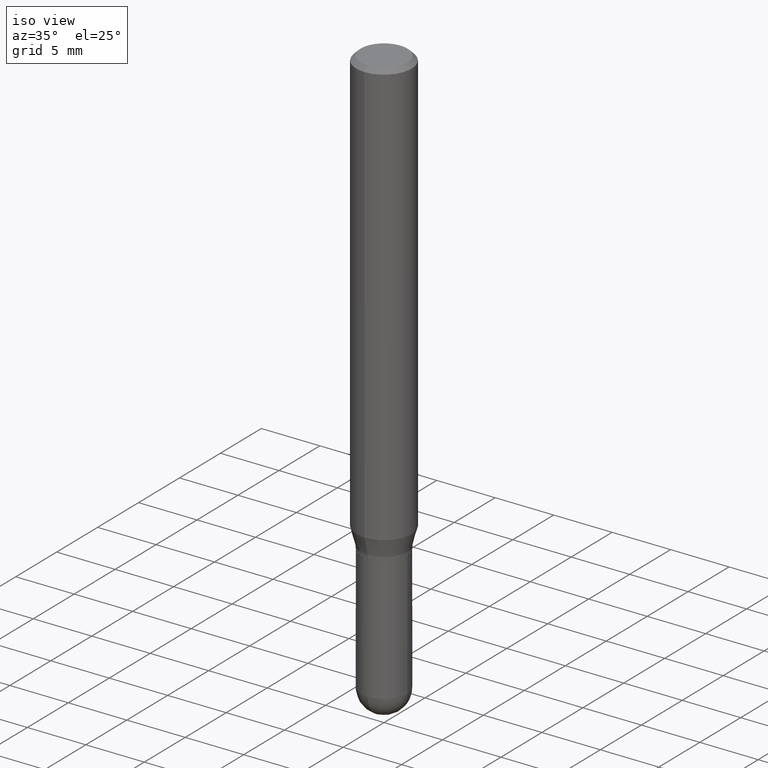
[diagram: clean part render]
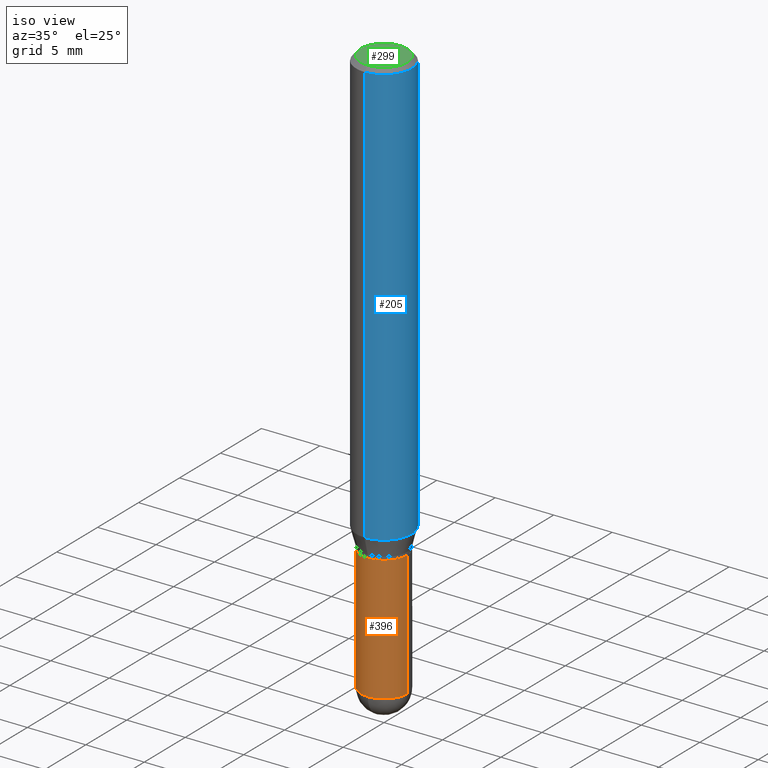
[diagram: same view with three faces highlighted in distinct colors, each labeled with its STEP entity id]
A machine part, iso view with three faces highlighted in distinct colors.
Their STEP definitions:

[orange] entity #396 — the highlighted cylindrical surface (edge-blend (fillet) strip) has radius 1.9837 mm, axis along (-0, 0, 1).
#2 = CIRCLE ( 'NONE', #281, 0.07810000000000000275 ) ;
#6 = DIRECTION ( 'NONE',  ( -2.445468806185136597E-29, 3.491481338843145583E-15, 1.000000000000000000 ) ) ;
#19 = CARTESIAN_POINT ( 'NONE',  ( 0.07810000000000000275, -5.453693851272974364E-16, 3.808294061896625703E-30 ) ) ;
#42 = DIRECTION ( 'NONE',  ( 1.000000000000000000, -6.982962677686266711E-15, 0.000000000000000000 ) ) ;
#47 = CARTESIAN_POINT ( 'NONE',  ( 4.699946498607214373E-29, -6.710277985122641264E-15, -1.921900000000000164 ) ) ;
#54 = AXIS2_PLACEMENT_3D ( 'NONE', #47, #482, #153 ) ;
#67 = DIRECTION ( 'NONE',  ( 1.000000000000000000, -6.982962677686266711E-15, 4.876176775795935232E-29 ) ) ;
#68 = VERTEX_POINT ( 'NONE', #305 ) ;
#100 = VERTEX_POINT ( 'NONE', #353 ) ;
#113 = EDGE_CURVE ( 'NONE', #68, #472, #184, .T. ) ;
#116 = AXIS2_PLACEMENT_3D ( 'NONE', #304, #371, #67 ) ;
#118 = EDGE_LOOP ( 'NONE', ( #216, #228, #269, #381, #448 ) ) ;
#135 = FACE_OUTER_BOUND ( 'NONE', #118, .T. ) ;
#151 = EDGE_CURVE ( 'NONE', #100, #348, #2, .T. ) ;
#153 = DIRECTION ( 'NONE',  ( 1.000000000000000000, -6.982962677686266711E-15, 0.000000000000000000 ) ) ;
#165 = EDGE_CURVE ( 'NONE', #379, #68, #333, .T. ) ;
#171 = DIRECTION ( 'NONE',  ( -2.445468806185136877E-29, 3.491481338843145188E-15, 1.000000000000000000 ) ) ;
#184 = CIRCLE ( 'NONE', #501, 0.07810000000000000275 ) ;
#195 = CARTESIAN_POINT ( 'NONE',  ( 4.699946498607214373E-29, -6.710277985122641264E-15, -1.921900000000000164 ) ) ;
#208 = CARTESIAN_POINT ( 'NONE',  ( -0.07810000000000000275, 5.549338766286382647E-16, -3.841688305489081275E-30 ) ) ;
#216 = ORIENTED_EDGE ( 'NONE', *, *, #260, .F. ) ;
#228 = ORIENTED_EDGE ( 'NONE', *, *, #165, .T. ) ;
#236 = DIRECTION ( 'NONE',  ( -2.445468806185136597E-29, 3.491481338843145583E-15, 1.000000000000000000 ) ) ;
#260 = EDGE_CURVE ( 'NONE', #379, #100, #454, .T. ) ;
#262 = DIRECTION ( 'NONE',  ( -2.445468806185136877E-29, 3.491481338843145188E-15, 1.000000000000000000 ) ) ;
#269 = ORIENTED_EDGE ( 'NONE', *, *, #113, .T. ) ;
#277 = CARTESIAN_POINT ( 'NONE',  ( 0.07810000000000000275, -6.519119381820976762E-15, -1.921900000000000164 ) ) ;
#281 = AXIS2_PLACEMENT_3D ( 'NONE', #479, #6, #42 ) ;
#304 = CARTESIAN_POINT ( 'NONE',  ( 0.000000000000000000, 0.000000000000000000, 0.000000000000000000 ) ) ;
#305 = CARTESIAN_POINT ( 'NONE',  ( -5.549338766285910317E-16, -0.07810000000000670572, -1.921899999999999720 ) ) ;
#313 = EDGE_CURVE ( 'NONE', #472, #348, #372, .T. ) ;
#333 = CIRCLE ( 'NONE', #54, 0.07810000000000000275 ) ;
#342 = CYLINDRICAL_SURFACE ( 'NONE', #116, 0.07810000000000000275 ) ;
#348 = VERTEX_POINT ( 'NONE', #401 ) ;
#353 = CARTESIAN_POINT ( 'NONE',  ( -0.07810000000000000275, -5.418816120065042244E-15, -1.500000000000000222 ) ) ;
#371 = DIRECTION ( 'NONE',  ( -2.445468806185136597E-29, 3.491481338843145583E-15, 1.000000000000000000 ) ) ;
#372 = LINE ( 'NONE', #19, #416 ) ;
#379 = VERTEX_POINT ( 'NONE', #488 ) ;
#381 = ORIENTED_EDGE ( 'NONE', *, *, #313, .T. ) ;
#384 = VECTOR ( 'NONE', #262, 39.37007874015748143 ) ;
#396 = ADVANCED_FACE ( 'NONE', ( #135 ), #342, .T. ) ;
#401 = CARTESIAN_POINT ( 'NONE',  ( 0.07810000000000000275, -5.782591393392015613E-15, -1.500000000000000222 ) ) ;
#416 = VECTOR ( 'NONE', #171, 39.37007874015748143 ) ;
#439 = DIRECTION ( 'NONE',  ( 1.000000000000000000, -6.982962677686266711E-15, 0.000000000000000000 ) ) ;
#448 = ORIENTED_EDGE ( 'NONE', *, *, #151, .F. ) ;
#454 = LINE ( 'NONE', #208, #384 ) ;
#472 = VERTEX_POINT ( 'NONE', #277 ) ;
#479 = CARTESIAN_POINT ( 'NONE',  ( 3.668203209277704895E-29, -5.237222008264718177E-15, -1.500000000000000222 ) ) ;
#482 = DIRECTION ( 'NONE',  ( -2.445468806185136597E-29, 3.491481338843145583E-15, 1.000000000000000000 ) ) ;
#488 = CARTESIAN_POINT ( 'NONE',  ( -0.07810000000000000275, -5.418816120065042244E-15, -1.921900000000000164 ) ) ;
#501 = AXIS2_PLACEMENT_3D ( 'NONE', #195, #236, #439 ) ;

[blue] entity #205 — the highlighted cylindrical surface (edge-blend (fillet) strip) has radius 2.3813 mm, axis along (-0, 0, 1).
#4 = CARTESIAN_POINT ( 'NONE',  ( -6.546527510330875041E-16, -0.09375000000000001388, 3.273862860613314496E-16 ) ) ;
#20 = ORIENTED_EDGE ( 'NONE', *, *, #207, .F. ) ;
#31 = AXIS2_PLACEMENT_3D ( 'NONE', #321, #395, #412 ) ;
#48 = AXIS2_PLACEMENT_3D ( 'NONE', #285, #238, #444 ) ;
#52 = DIRECTION ( 'NONE',  ( -2.445022562880342820E-29, 3.492120384654201603E-15, 1.000000000000000000 ) ) ;
#58 = CARTESIAN_POINT ( 'NONE',  ( 6.661338147751288313E-16, 0.09374999999999500400, -1.431593404861545960 ) ) ;
#74 = CIRCLE ( 'NONE', #31, 0.09375000000000001388 ) ;
#75 = ORIENTED_EDGE ( 'NONE', *, *, #178, .T. ) ;
#80 = CIRCLE ( 'NONE', #48, 0.09375000000000001388 ) ;
#82 = DIRECTION ( 'NONE',  ( -2.445022562880343100E-29, 3.492120384654201603E-15, 1.000000000000000000 ) ) ;
#85 = CARTESIAN_POINT ( 'NONE',  ( 6.661338147751291272E-16, 0.09374999999999995837, -0.01500000000000030476 ) ) ;
#105 = EDGE_CURVE ( 'NONE', #300, #290, #434, .T. ) ;
#124 = AXIS2_PLACEMENT_3D ( 'NONE', #320, #82, #441 ) ;
#157 = CYLINDRICAL_SURFACE ( 'NONE', #124, 0.09375000000000001388 ) ;
#169 = EDGE_LOOP ( 'NONE', ( #418, #75, #20, #458 ) ) ;
#178 = EDGE_CURVE ( 'NONE', #276, #221, #393, .T. ) ;
#205 = ADVANCED_FACE ( 'NONE', ( #282 ), #157, .T. ) ;
#207 = EDGE_CURVE ( 'NONE', #290, #221, #80, .T. ) ;
#221 = VERTEX_POINT ( 'NONE', #85 ) ;
#238 = DIRECTION ( 'NONE',  ( -2.445022562880343100E-29, 3.492120384654201603E-15, 1.000000000000000000 ) ) ;
#239 = EDGE_CURVE ( 'NONE', #300, #276, #74, .T. ) ;
#276 = VERTEX_POINT ( 'NONE', #58 ) ;
#282 = FACE_OUTER_BOUND ( 'NONE', #169, .T. ) ;
#285 = CARTESIAN_POINT ( 'NONE',  ( 3.667533844320509501E-31, -5.238180576981294836E-17, -0.01499999999999997863 ) ) ;
#286 = VECTOR ( 'NONE', #52, 39.37007874015748143 ) ;
#290 = VERTEX_POINT ( 'NONE', #415 ) ;
#300 = VERTEX_POINT ( 'NONE', #409 ) ;
#301 = VECTOR ( 'NONE', #391, 39.37007874015748143 ) ;
#320 = CARTESIAN_POINT ( 'NONE',  ( 0.000000000000000000, 0.000000000000000000, 0.000000000000000000 ) ) ;
#321 = CARTESIAN_POINT ( 'NONE',  ( 3.500278175757173363E-29, -4.999296511653519155E-15, -1.431593404861545737 ) ) ;
#391 = DIRECTION ( 'NONE',  ( -2.445022562880342820E-29, 3.492120384654201603E-15, 1.000000000000000000 ) ) ;
#393 = LINE ( 'NONE', #402, #286 ) ;
#395 = DIRECTION ( 'NONE',  ( -2.445022562880343100E-29, 3.492120384654201603E-15, 1.000000000000000000 ) ) ;
#402 = CARTESIAN_POINT ( 'NONE',  ( 6.661338147750938256E-16, 0.09375000000000001388, -3.273862860613314496E-16 ) ) ;
#409 = CARTESIAN_POINT ( 'NONE',  ( -6.546527510330523012E-16, -0.09375000000000500988, -1.431593404861545515 ) ) ;
#412 = DIRECTION ( 'NONE',  ( -6.982962677686265922E-15, -1.000000000000000000, 2.913971193241880372E-15 ) ) ;
#415 = CARTESIAN_POINT ( 'NONE',  ( -6.546527510330871097E-16, -0.09375000000000005551, -0.01499999999999965250 ) ) ;
#418 = ORIENTED_EDGE ( 'NONE', *, *, #239, .T. ) ;
#434 = LINE ( 'NONE', #4, #301 ) ;
#441 = DIRECTION ( 'NONE',  ( -6.982962677686265922E-15, -1.000000000000000000, 3.492120384654201603E-15 ) ) ;
#444 = DIRECTION ( 'NONE',  ( -6.982962677686265922E-15, -1.000000000000000000, 3.483106191921935160E-15 ) ) ;
#458 = ORIENTED_EDGE ( 'NONE', *, *, #105, .F. ) ;

[green] entity #299 — the highlighted planar face has unit normal (0, -0, -1).
#63 = DIRECTION ( 'NONE',  ( 2.445022562880342820E-29, -3.492120384654201603E-15, -1.000000000000000000 ) ) ;
#99 = FACE_OUTER_BOUND ( 'NONE', #388, .T. ) ;
#126 = DIRECTION ( 'NONE',  ( -6.982962677686264344E-15, -1.000000000000000000, 3.492120384654201209E-15 ) ) ;
#168 = CARTESIAN_POINT ( 'NONE',  ( -5.353897400011380051E-46, 7.646740987903862261E-32, 2.189712880892295595E-17 ) ) ;
#175 = CIRCLE ( 'NONE', #477, 0.07875000000000001443 ) ;
#204 = CARTESIAN_POINT ( 'NONE',  ( -5.353897400011380051E-46, 7.646740987903862261E-32, 2.189712880892295595E-17 ) ) ;
#206 = DIRECTION ( 'NONE',  ( -6.982962677686264344E-15, -1.000000000000000000, 3.492120384654201209E-15 ) ) ;
#219 = CIRCLE ( 'NONE', #226, 0.07875000000000001443 ) ;
#220 = DIRECTION ( 'NONE',  ( 6.982962677686265922E-15, 1.000000000000000000, -3.492120384654201603E-15 ) ) ;
#223 = EDGE_CURVE ( 'NONE', #233, #296, #175, .T. ) ;
#226 = AXIS2_PLACEMENT_3D ( 'NONE', #168, #319, #206 ) ;
#233 = VERTEX_POINT ( 'NONE', #240 ) ;
#240 = CARTESIAN_POINT ( 'NONE',  ( -5.917179523077944868E-16, -0.07875000000000001443, 2.969016091004413093E-16 ) ) ;
#254 = CARTESIAN_POINT ( 'NONE',  ( 5.499083108677934443E-16, 0.07875000000000001443, -2.640559158870569216E-16 ) ) ;
#296 = VERTEX_POINT ( 'NONE', #450 ) ;
#297 = PLANE ( 'NONE',  #349 ) ;
#299 = ADVANCED_FACE ( 'NONE', ( #99 ), #297, .F. ) ;
#316 = DIRECTION ( 'NONE',  ( -2.445022562880343100E-29, 3.492120384654201603E-15, 1.000000000000000000 ) ) ;
#319 = DIRECTION ( 'NONE',  ( -2.445022562880343100E-29, 3.492120384654201603E-15, 1.000000000000000000 ) ) ;
#349 = AXIS2_PLACEMENT_3D ( 'NONE', #254, #63, #220 ) ;
#352 = EDGE_CURVE ( 'NONE', #296, #233, #219, .T. ) ;
#388 = EDGE_LOOP ( 'NONE', ( #453, #470 ) ) ;
#450 = CARTESIAN_POINT ( 'NONE',  ( 6.022805309504406221E-16, 0.07875000000000001443, -2.531073514825954590E-16 ) ) ;
#453 = ORIENTED_EDGE ( 'NONE', *, *, #352, .T. ) ;
#470 = ORIENTED_EDGE ( 'NONE', *, *, #223, .T. ) ;
#477 = AXIS2_PLACEMENT_3D ( 'NONE', #204, #316, #126 ) ;